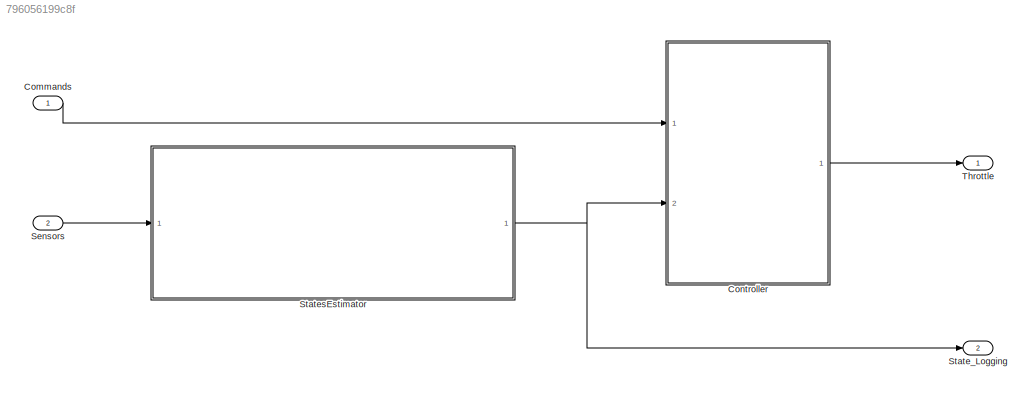
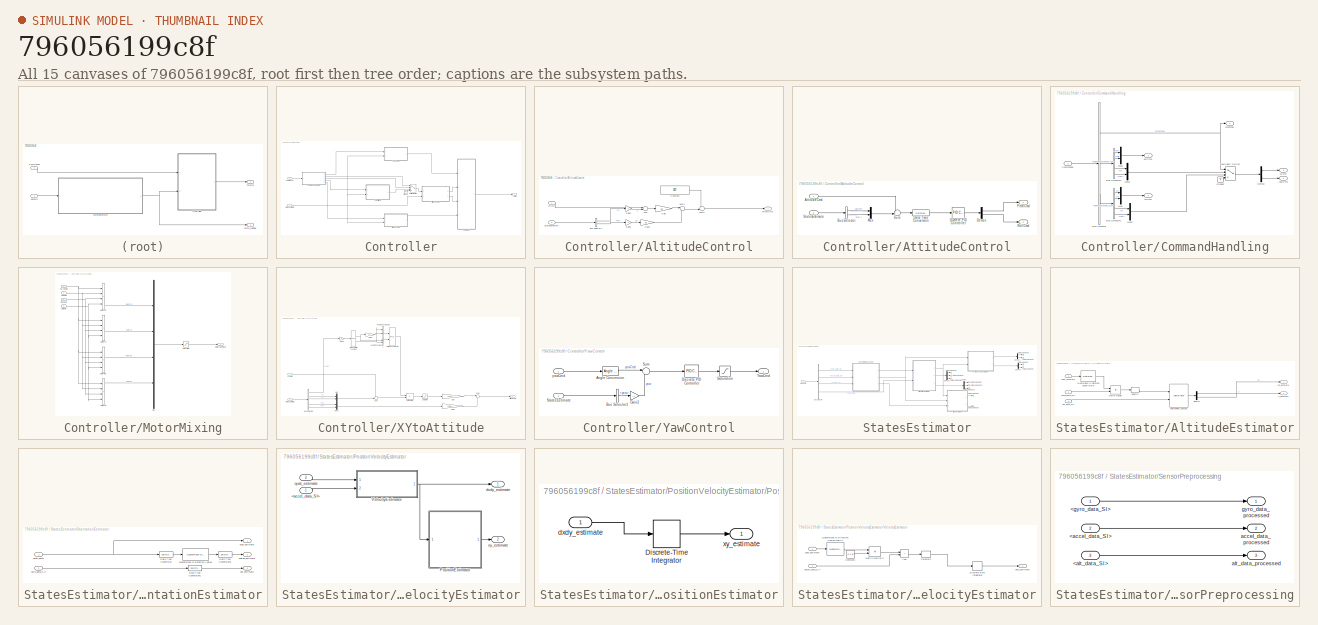
[diagram: thumbnail index - all 15 canvases of the model, root first then tree order]
MODEL slx_796056199c8f
KIND model
CONFIG AbsTol = auto
CONFIG EnableMultiTasking = off
CONFIG FixedStep = auto
CONFIG MaxStep = auto
CONFIG MinStep = auto
CONFIG RelTol = 1e-3
CONFIG SampleTimeConstraint = Unconstrained
CONFIG SolverName = FixedStepAuto
CONFIG StartTime = 0.0
CONFIG StopTime = 10.0
BLOCK [Inport] Commands
  OutDataTypeStr = Bus: command_t
BLOCK [SubSystem] Controller
  Ports = [2, 1]
  RequestExecContextInheritance = off
  TreatAsAtomicUnit = on
BLOCK [SubSystem] Controller/AltitudeControl
  Ports = [2, 1]
  RequestExecContextInheritance = off
BLOCK [BusSelector] Controller/AltitudeControl/Bus Selector1
  OutputSignals = z,dz
  Ports = [1, 2]
BLOCK [Constant] Controller/AltitudeControl/Constant
  Value = 167
BLOCK [Gain] Controller/AltitudeControl/Gain
  Gain = 15
BLOCK [Gain] Controller/AltitudeControl/Gain1
  Gain = 15
BLOCK [Gain] Controller/AltitudeControl/Gain2
  Gain = -1
BLOCK [Gain] Controller/AltitudeControl/Gain3
  Gain = -1
BLOCK [Inport] Controller/AltitudeControl/StatesEstimate
  Port = 2
BLOCK [Sum] Controller/AltitudeControl/Sum
  Inputs = +-|
  Ports = [2, 1]
BLOCK [Sum] Controller/AltitudeControl/Sum1
  Inputs = |+-
  Ports = [2, 1]
BLOCK [Sum] Controller/AltitudeControl/Sum2
  Inputs = ++|
  NameLocation = top
  Ports = [2, 1]
BLOCK [Outport] Controller/AltitudeControl/ThrustCmd
BLOCK [Inport] Controller/AltitudeControl/zCmd
BLOCK [SubSystem] Controller/AttitudeControl
  Ports = [2, 2]
  RequestExecContextInheritance = off
BLOCK [Inport] Controller/AttitudeControl/AttitudeCmd
BLOCK [BusSelector] Controller/AttitudeControl/Bus Selector
  OutputSignals = pitch,roll
  Ports = [1, 2]
BLOCK [DataTypeConversion] Controller/AttitudeControl/Data Type Conversion
  OutDataTypeStr = double
  RndMeth = Floor
  SaturateOnIntegerOverflow = off
BLOCK [Demux] Controller/AttitudeControl/Demux
  Outputs = 2
  Ports = [1, 2]
BLOCK [Reference] Controller/AttitudeControl/Discrete PID Controller  REF=pid_lib/PID Controller
  Ports = [1, 1]
  SourceBlock = pid_lib/PID Controller
  SourceProductBaseCode = SL
  SourceType = PID 1dof
BLOCK [Mux] Controller/AttitudeControl/Mux
  DisplayOption = bar
  Inputs = 2
  Ports = [2, 1]
BLOCK [Outport] Controller/AttitudeControl/PitchCmd
BLOCK [Outport] Controller/AttitudeControl/RollCmd
  Port = 2
BLOCK [Inport] Controller/AttitudeControl/StatesEstimate
  Port = 2
BLOCK [Sum] Controller/AttitudeControl/Sum
  Inputs = +-|
  Ports = [2, 1]
BLOCK [SubSystem] Controller/CommandHandling
  Ports = [1, 5]
  RequestExecContextInheritance = off
BLOCK [BusSelector] Controller/CommandHandling/Bus Selector
  OutputSignals = cmdType,orientReferenceCmd,posReferenceCmd
  Ports = [1, 3]
BLOCK [BusSelector] Controller/CommandHandling/Bus Selector1
  OutputSignals = x,y,z,yaw
  Ports = [1, 4]
BLOCK [BusSelector] Controller/CommandHandling/Bus Selector2
  OutputSignals = pitch,roll,z,yaw
  Ports = [1, 4]
BLOCK [Inport] Controller/CommandHandling/Commands
BLOCK [Demux] Controller/CommandHandling/Demux
  Outputs = 2
  Ports = [1, 2]
BLOCK [Ground] Controller/CommandHandling/Ground
BLOCK [MultiPortSwitch] Controller/CommandHandling/Multiport Switch
  DataPortOrder = Zero-based contiguous
  InputSameDT = off
  Ports = [4, 1]
  SaturateOnIntegerOverflow = off
  zeroidx = on
BLOCK [Mux] Controller/CommandHandling/Mux
  DisplayOption = bar
  Inputs = 2
  Ports = [2, 1]
BLOCK [Mux] Controller/CommandHandling/Mux1
  DisplayOption = bar
  Inputs = 2
  Ports = [2, 1]
BLOCK [Mux] Controller/CommandHandling/Mux2
  DisplayOption = bar
  Inputs = 2
  Ports = [2, 1]
BLOCK [Mux] Controller/CommandHandling/Mux3
  DisplayOption = bar
  Inputs = 2
  Ports = [2, 1]
BLOCK [Outport] Controller/CommandHandling/attCmd
  Port = 3
BLOCK [Outport] Controller/CommandHandling/cmdType
  Port = 2
BLOCK [Outport] Controller/CommandHandling/xyCmd
  Port = 4
BLOCK [Outport] Controller/CommandHandling/yawCmd
BLOCK [Outport] Controller/CommandHandling/zCmd
  Port = 5
BLOCK [Inport] Controller/Commands
BLOCK [Ground] Controller/Ground
BLOCK [SubSystem] Controller/MotorMixing
  Ports = [4, 1]
  RequestExecContextInheritance = off
BLOCK [Sum] Controller/MotorMixing/MotorBL
  IconShape = rectangular
  Inputs = ++-+
  Ports = [4, 1]
BLOCK [Sum] Controller/MotorMixing/MotorBR
  IconShape = rectangular
  Inputs = +---
  Ports = [4, 1]
BLOCK [Outport] Controller/MotorMixing/MotorCommand
BLOCK [Sum] Controller/MotorMixing/MotorFL
  IconShape = rectangular
  Inputs = +-++
  Ports = [4, 1]
BLOCK [Sum] Controller/MotorMixing/MotorFR
  IconShape = rectangular
  Inputs = +++-
  Ports = [4, 1]
BLOCK [Mux] Controller/MotorMixing/Mux
  DisplayOption = bar
  Ports = [4, 1]
BLOCK [Inport] Controller/MotorMixing/PitchCmd
  Port = 2
BLOCK [Inport] Controller/MotorMixing/RollCmd
  Port = 3
BLOCK [Saturate] Controller/MotorMixing/Saturation
  LowerLimit = 0
  UpperLimit = 1000
BLOCK [Inport] Controller/MotorMixing/ThrustCmd
  Port = 4
BLOCK [Inport] Controller/MotorMixing/YawCmd
BLOCK [MultiPortSwitch] Controller/Multiport Switch
  InputSameDT = off
  Ports = [4, 1]
  SaturateOnIntegerOverflow = off
BLOCK [Inport] Controller/StatesEstimate
  OutDataTypeStr = Bus: states_estimate_t
  Port = 2
BLOCK [Outport] Controller/Throttle
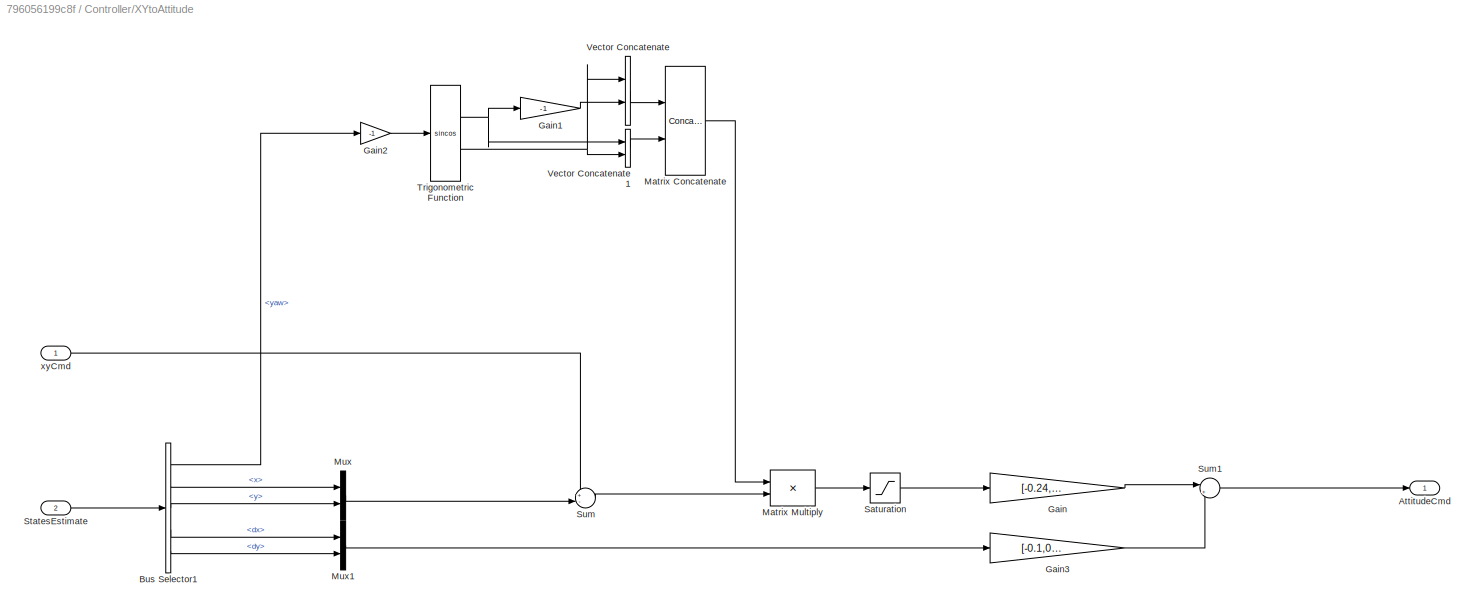
BLOCK [SubSystem] Controller/XYtoAttitude
  Ports = [2, 1]
  RequestExecContextInheritance = off
BLOCK [Outport] Controller/XYtoAttitude/AttitudeCmd
  VectorParamsAs1DForOutWhenUnconnected = off
BLOCK [BusSelector] Controller/XYtoAttitude/Bus Selector1
  OutputSignals = yaw,x,y,dx,dy
  Ports = [1, 5]
BLOCK [Gain] Controller/XYtoAttitude/Gain
  Gain = [-0.24,0.24]
BLOCK [Gain] Controller/XYtoAttitude/Gain1
  Gain = -1
BLOCK [Gain] Controller/XYtoAttitude/Gain2
  Gain = -1
BLOCK [Gain] Controller/XYtoAttitude/Gain3
  Gain = [-0.1,0.1]
BLOCK [Concatenate] Controller/XYtoAttitude/Matrix Concatenate
  ConcatenateDimension = 2
  Mode = Multidimensional array
  Ports = [2, 1]
BLOCK [Product] Controller/XYtoAttitude/Matrix Multiply
  Multiplication = Matrix(*)
  Ports = [2, 1]
BLOCK [Mux] Controller/XYtoAttitude/Mux
  DisplayOption = bar
  Inputs = 2
  Ports = [2, 1]
BLOCK [Mux] Controller/XYtoAttitude/Mux1
  DisplayOption = bar
  Inputs = 2
  Ports = [2, 1]
BLOCK [Saturate] Controller/XYtoAttitude/Saturation
  LowerLimit = -3
  OutDataTypeStr = single
  UpperLimit = 3
BLOCK [Inport] Controller/XYtoAttitude/StatesEstimate
  Port = 2
BLOCK [Sum] Controller/XYtoAttitude/Sum
  Inputs = +-|
  Ports = [2, 1]
BLOCK [Sum] Controller/XYtoAttitude/Sum1
  Inputs = |+-
  Ports = [2, 1]
BLOCK [Trigonometry] Controller/XYtoAttitude/Trigonometric Function
  Operator = sincos
  Ports = [1, 2]
BLOCK [Concatenate] Controller/XYtoAttitude/Vector Concatenate
  Ports = [2, 1]
BLOCK [Concatenate] Controller/XYtoAttitude/Vector Concatenate1
  Ports = [2, 1]
BLOCK [Inport] Controller/XYtoAttitude/xyCmd
BLOCK [SubSystem] Controller/YawControl
  Ports = [2, 1]
  RequestExecContextInheritance = off
BLOCK [Reference] Controller/YawControl/Angle Conversion  REF=aerolibconvert2/Angle Conversion
  Ports = [1, 1]
  SourceBlock = aerolibconvert2/Angle Conversion
  SourceProductBaseCode = AE
  SourceType = Angle Conversion
BLOCK [BusSelector] Controller/YawControl/Bus Selector1
  OutputSignals = yaw
  Ports = [1, 1]
BLOCK [Reference] Controller/YawControl/Discrete PID Controller  REF=pid_lib/PID Controller
  Ports = [1, 1]
  SourceBlock = pid_lib/PID Controller
  SourceProductBaseCode = SL
  SourceType = PID 1dof
BLOCK [Gain] Controller/YawControl/Gain2
  Gain = -1
BLOCK [Saturate] Controller/YawControl/Saturation
  LowerLimit = -150
  UpperLimit = 150
BLOCK [Inport] Controller/YawControl/StatesEstimate
  Port = 2
BLOCK [Sum] Controller/YawControl/Sum
  Inputs = |+-
  Ports = [2, 1]
BLOCK [Outport] Controller/YawControl/YawCmd
BLOCK [Inport] Controller/YawControl/yawCmd
BLOCK [Inport] Sensors
  OutDataTypeStr = Bus: sensor_data_t
  Port = 2
BLOCK [Outport] State_Logging
  OutDataTypeStr = Bus: states_estimate_t
  Port = 2
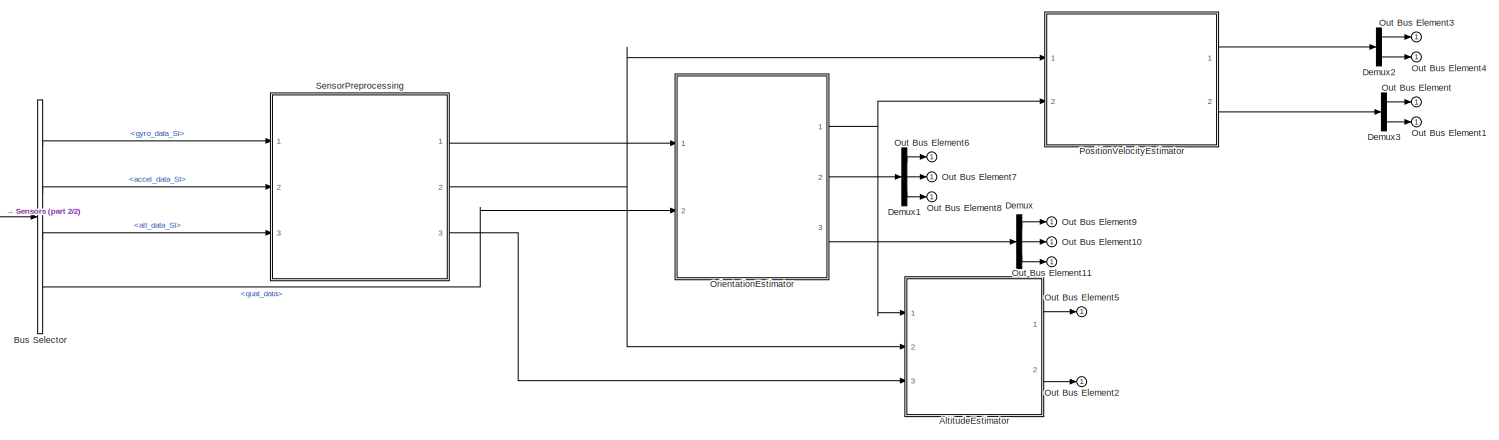
[diagram: StatesEstimator - part 1/2, most of the canvas]
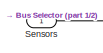
[diagram: StatesEstimator - part 2/2, middle left region]
BLOCK [SubSystem] StatesEstimator
  Ports = [1, 1]
  RequestExecContextInheritance = off
  TreatAsAtomicUnit = on
BLOCK [SubSystem] StatesEstimator/AltitudeEstimator
  Ports = [3, 2]
  RequestExecContextInheritance = off
BLOCK [Inport] StatesEstimator/AltitudeEstimator/<accel_data_SI>
  Port = 2
BLOCK [Inport] StatesEstimator/AltitudeEstimator/<alt_data_SI>
  Port = 3
BLOCK [Inport] StatesEstimator/AltitudeEstimator/DCM_estimate
BLOCK [Demux] StatesEstimator/AltitudeEstimator/Demux
  Outputs = 2
  Ports = [1, 2]
BLOCK [Reference] StatesEstimator/AltitudeEstimator/KalmanFilter_altitude  REF=ctrlSharedLib/Kalman Filter
  Ports = [2, 1]
  SourceBlock = ctrlSharedLib/Kalman Filter
  SourceProductBaseCode = CT,ID
  SourceType = ctrlKalmanFilter
BLOCK [Product] StatesEstimator/AltitudeEstimator/Matrix Multiply
  Multiplication = Matrix(*)
  OutDataTypeStr = single
  Ports = [2, 1]
BLOCK [Reference] StatesEstimator/AltitudeEstimator/Quaternions to Direction Cosine Matrix  REF=sharedtransform/Quaternions to 
Direction Cosine Matrix
  Ports = [1, 1]
  SourceBlock = sharedtransform/Quaternions to \nDirection Cosine Matrix
  SourceProductBaseCode = AE,PW,MT,UV,VE,VP
  SourceType = Quaternion2DCM
BLOCK [Selector] StatesEstimator/AltitudeEstimator/Selector
  IndexOptions = Index vector (dialog)
  Indices = [3]
  InputPortWidth = 3
  OutputSizes = 1
  Ports = [1, 1]
BLOCK [Outport] StatesEstimator/AltitudeEstimator/dz_estimate
BLOCK [Outport] StatesEstimator/AltitudeEstimator/z_estimate
  Port = 2
BLOCK [BusSelector] StatesEstimator/Bus Selector
  OutputSignals = gyro_data_SI,accel_data_SI,alt_data_SI,quat_data
  Ports = [1, 4]
BLOCK [Demux] StatesEstimator/Demux
  Outputs = 3
  Ports = [1, 3]
BLOCK [Demux] StatesEstimator/Demux1
  Outputs = 3
  Ports = [1, 3]
BLOCK [Demux] StatesEstimator/Demux2
  Outputs = 2
  Ports = [1, 2]
BLOCK [Demux] StatesEstimator/Demux3
  Outputs = 2
  Ports = [1, 2]
BLOCK [SubSystem] StatesEstimator/OrientationEstimator
  Ports = [2, 3]
  RequestExecContextInheritance = off
BLOCK [Inport] StatesEstimator/OrientationEstimator/<gyro_data_SI>
BLOCK [Inport] StatesEstimator/OrientationEstimator/<quat_data>
  Port = 2
BLOCK [DataTypeConversion] StatesEstimator/OrientationEstimator/Data Type Conversion
  OutDataTypeStr = double
  RndMeth = Floor
  SaturateOnIntegerOverflow = off
BLOCK [DataTypeConversion] StatesEstimator/OrientationEstimator/Data Type Conversion1
  OutDataTypeStr = single
  RndMeth = Floor
  SaturateOnIntegerOverflow = off
BLOCK [DataTypeConversion] StatesEstimator/OrientationEstimator/Data Type Conversion2
  OutDataTypeStr = single
  RndMeth = Floor
  SaturateOnIntegerOverflow = off
BLOCK [Reference] StatesEstimator/OrientationEstimator/Quaternions to Rotation Angles  REF=sharedtransform/Quaternions to Rotation Angles
  AttributesFormatString = Rotation Order: %<rotationOrder>
  Ports = [1, 1]
  SourceBlock = sharedtransform/Quaternions to Rotation Angles
  SourceProductBaseCode = AE,PW,MT,UV,VE,VP
  SourceType = Quat2Ang
BLOCK [Outport] StatesEstimator/OrientationEstimator/angles_estimate
  Port = 2
BLOCK [Outport] StatesEstimator/OrientationEstimator/pqr_estimate
  Port = 3
BLOCK [Outport] StatesEstimator/OrientationEstimator/quat_estimate
BLOCK [Outport] StatesEstimator/Out Bus Element
BLOCK [Outport] StatesEstimator/Out Bus Element1
BLOCK [Outport] StatesEstimator/Out Bus Element10
BLOCK [Outport] StatesEstimator/Out Bus Element11
BLOCK [Outport] StatesEstimator/Out Bus Element2
BLOCK [Outport] StatesEstimator/Out Bus Element3
BLOCK [Outport] StatesEstimator/Out Bus Element4
BLOCK [Outport] StatesEstimator/Out Bus Element5
BLOCK [Outport] StatesEstimator/Out Bus Element6
BLOCK [Outport] StatesEstimator/Out Bus Element7
BLOCK [Outport] StatesEstimator/Out Bus Element8
BLOCK [Outport] StatesEstimator/Out Bus Element9
BLOCK [SubSystem] StatesEstimator/PositionVelocityEstimator
  Ports = [2, 2]
  RequestExecContextInheritance = off
BLOCK [Inport] StatesEstimator/PositionVelocityEstimator/<accel_data_SI>
BLOCK [SubSystem] StatesEstimator/PositionVelocityEstimator/PositionEstimator
  Ports = [1, 1]
  RequestExecContextInheritance = off
BLOCK [DiscreteIntegrator] StatesEstimator/PositionVelocityEstimator/PositionEstimator/Discrete-Time Integrator
  ICPrevOutput = DiscIntNeverNeededParam
  ICPrevScaledInput = DiscIntNeverNeededParam
  InitialConditionSetting = Auto
  Ports = [1, 1]
  SampleTime = Ts
BLOCK [Inport] StatesEstimator/PositionVelocityEstimator/PositionEstimator/dxdy_estimate
BLOCK [Outport] StatesEstimator/PositionVelocityEstimator/PositionEstimator/xy_estimate
BLOCK [SubSystem] StatesEstimator/PositionVelocityEstimator/VelocityEstimator
  Ports = [2, 1]
  RequestExecContextInheritance = off
BLOCK [Inport] StatesEstimator/PositionVelocityEstimator/VelocityEstimator/<accel_data_SI>
  Port = 2
BLOCK [Sum] StatesEstimator/PositionVelocityEstimator/VelocityEstimator/Add
  IconShape = rectangular
  Ports = [2, 1]
BLOCK [Constant] StatesEstimator/PositionVelocityEstimator/VelocityEstimator/Constant1
  Value = [0 0 g]
BLOCK [DiscreteIntegrator] StatesEstimator/PositionVelocityEstimator/VelocityEstimator/Discrete-Time Integrator
  ICPrevOutput = DiscIntNeverNeededParam
  ICPrevScaledInput = DiscIntNeverNeededParam
  InitialConditionSetting = Auto
  Ports = [1, 1]
  SampleTime = Ts
BLOCK [Product] StatesEstimator/PositionVelocityEstimator/VelocityEstimator/Matrix Multiply1
  Multiplication = Matrix(*)
  OutDataTypeStr = single
  Ports = [2, 1]
BLOCK [Reference] StatesEstimator/PositionVelocityEstimator/VelocityEstimator/Quaternions to Direction Cosine Matrix  REF=sharedtransform/Quaternions to 
Direction Cosine Matrix
  Ports = [1, 1]
  SourceBlock = sharedtransform/Quaternions to \nDirection Cosine Matrix
  SourceProductBaseCode = AE,PW,MT,UV,VE,VP
  SourceType = Quaternion2DCM
BLOCK [Selector] StatesEstimator/PositionVelocityEstimator/VelocityEstimator/Selector1
  IndexOptions = Index vector (dialog)
  Indices = [1 2]
  InputPortWidth = 3
  OutputSizes = 1
  Ports = [1, 1]
BLOCK [Outport] StatesEstimator/PositionVelocityEstimator/VelocityEstimator/dxdy_estimate
BLOCK [Inport] StatesEstimator/PositionVelocityEstimator/VelocityEstimator/quat_estimate
BLOCK [Outport] StatesEstimator/PositionVelocityEstimator/dxdy_estimate
BLOCK [Inport] StatesEstimator/PositionVelocityEstimator/quat_estimate
  Port = 2
BLOCK [Outport] StatesEstimator/PositionVelocityEstimator/xy_estimate
  Port = 2
BLOCK [SubSystem] StatesEstimator/SensorPreprocessing
  Ports = [3, 3]
  RequestExecContextInheritance = off
BLOCK [Inport] StatesEstimator/SensorPreprocessing/<accel_data_SI>
  Port = 2
BLOCK [Inport] StatesEstimator/SensorPreprocessing/<alt_data_SI>
  Port = 3
BLOCK [Inport] StatesEstimator/SensorPreprocessing/<gyro_data_SI>
BLOCK [Outport] StatesEstimator/SensorPreprocessing/accel_data_processed
  Port = 2
BLOCK [Outport] StatesEstimator/SensorPreprocessing/alt_data_processed
  Port = 3
BLOCK [Outport] StatesEstimator/SensorPreprocessing/gyro_data_processed
BLOCK [Inport] StatesEstimator/Sensors
  OutDataTypeStr = Bus: sensor_data_t
BLOCK [Outport] Throttle
LINE Commands:1 -> Controller:1
LINE Controller/AltitudeControl/Bus Selector1:1 -> Controller/AltitudeControl/Gain2:1
LINE Controller/AltitudeControl/Bus Selector1:2 -> Controller/AltitudeControl/Gain3:1
LINE Controller/AltitudeControl/Constant:1 -> Controller/AltitudeControl/Sum2:1
LINE Controller/AltitudeControl/Gain1:1 -> Controller/AltitudeControl/Sum1:2
LINE Controller/AltitudeControl/Gain2:1 -> Controller/AltitudeControl/Sum:2
LINE Controller/AltitudeControl/Gain3:1 -> Controller/AltitudeControl/Gain1:1
LINE Controller/AltitudeControl/Gain:1 -> Controller/AltitudeControl/Sum1:1
LINE Controller/AltitudeControl/StatesEstimate:1 -> Controller/AltitudeControl/Bus Selector1:1
LINE Controller/AltitudeControl/Sum1:1 -> Controller/AltitudeControl/Sum2:2
LINE Controller/AltitudeControl/Sum2:1 -> Controller/AltitudeControl/ThrustCmd:1
LINE Controller/AltitudeControl/Sum:1 -> Controller/AltitudeControl/Gain:1
LINE Controller/AltitudeControl/zCmd:1 -> Controller/AltitudeControl/Sum:1
LINE Controller/AltitudeControl:1 -> Controller/MotorMixing:4
LINE Controller/AttitudeControl/AttitudeCmd:1 -> Controller/AttitudeControl/Sum:1
LINE Controller/AttitudeControl/Bus Selector:1 -> Controller/AttitudeControl/Mux:1
LINE Controller/AttitudeControl/Bus Selector:2 -> Controller/AttitudeControl/Mux:2
LINE Controller/AttitudeControl/Data Type Conversion:1 -> Controller/AttitudeControl/Discrete PID Controller:1
LINE Controller/AttitudeControl/Demux:1 -> Controller/AttitudeControl/PitchCmd:1
LINE Controller/AttitudeControl/Demux:2 -> Controller/AttitudeControl/RollCmd:1
LINE Controller/AttitudeControl/Discrete PID Controller:1 -> Controller/AttitudeControl/Demux:1
LINE Controller/AttitudeControl/Mux:1 -> Controller/AttitudeControl/Sum:2
LINE Controller/AttitudeControl/StatesEstimate:1 -> Controller/AttitudeControl/Bus Selector:1
LINE Controller/AttitudeControl/Sum:1 -> Controller/AttitudeControl/Data Type Conversion:1
LINE Controller/AttitudeControl:1 -> Controller/MotorMixing:2
LINE Controller/AttitudeControl:2 -> Controller/MotorMixing:3
LINE Controller/CommandHandling/Bus Selector1:1 -> Controller/CommandHandling/Mux:1
LINE Controller/CommandHandling/Bus Selector1:2 -> Controller/CommandHandling/Mux:2
LINE Controller/CommandHandling/Bus Selector1:3 -> Controller/CommandHandling/Mux2:1
LINE Controller/CommandHandling/Bus Selector1:4 -> Controller/CommandHandling/Mux2:2
LINE Controller/CommandHandling/Bus Selector2:1 -> Controller/CommandHandling/Mux1:1
LINE Controller/CommandHandling/Bus Selector2:2 -> Controller/CommandHandling/Mux1:2
LINE Controller/CommandHandling/Bus Selector2:3 -> Controller/CommandHandling/Mux3:1
LINE Controller/CommandHandling/Bus Selector2:4 -> Controller/CommandHandling/Mux3:2
NET Controller/CommandHandling/Bus Selector:1 -> Controller/CommandHandling/Multiport Switch:1, Controller/CommandHandling/cmdType:1
LINE Controller/CommandHandling/Bus Selector:2 -> Controller/CommandHandling/Bus Selector2:1
LINE Controller/CommandHandling/Bus Selector:3 -> Controller/CommandHandling/Bus Selector1:1
LINE Controller/CommandHandling/Commands:1 -> Controller/CommandHandling/Bus Selector:1
LINE Controller/CommandHandling/Demux:1 -> Controller/CommandHandling/zCmd:1
LINE Controller/CommandHandling/Demux:2 -> Controller/CommandHandling/yawCmd:1
LINE Controller/CommandHandling/Ground:1 -> Controller/CommandHandling/Multiport Switch:4
LINE Controller/CommandHandling/Multiport Switch:1 -> Controller/CommandHandling/Demux:1
LINE Controller/CommandHandling/Mux1:1 -> Controller/CommandHandling/attCmd:1
LINE Controller/CommandHandling/Mux2:1 -> Controller/CommandHandling/Multiport Switch:3
LINE Controller/CommandHandling/Mux3:1 -> Controller/CommandHandling/Multiport Switch:2
LINE Controller/CommandHandling/Mux:1 -> Controller/CommandHandling/xyCmd:1
LINE Controller/CommandHandling:1 -> Controller/YawControl:1
LINE Controller/CommandHandling:2 -> Controller/Multiport Switch:1
LINE Controller/CommandHandling:3 -> Controller/Multiport Switch:2
LINE Controller/CommandHandling:4 -> Controller/XYtoAttitude:1
LINE Controller/CommandHandling:5 -> Controller/AltitudeControl:1
LINE Controller/Commands:1 -> Controller/CommandHandling:1
LINE Controller/Ground:1 -> Controller/Multiport Switch:4
LINE Controller/MotorMixing/MotorBL:1 -> Controller/MotorMixing/Mux:4
LINE Controller/MotorMixing/MotorBR:1 -> Controller/MotorMixing/Mux:3
LINE Controller/MotorMixing/MotorFL:1 -> Controller/MotorMixing/Mux:2
LINE Controller/MotorMixing/MotorFR:1 -> Controller/MotorMixing/Mux:1
LINE Controller/MotorMixing/Mux:1 -> Controller/MotorMixing/Saturation:1
NET Controller/MotorMixing/PitchCmd:1 -> Controller/MotorMixing/MotorBL:3, Controller/MotorMixing/MotorBR:3, Controller/MotorMixing/MotorFL:3, Controller/MotorMixing/MotorFR:3
NET Controller/MotorMixing/RollCmd:1 -> Controller/MotorMixing/MotorBL:4, Controller/MotorMixing/MotorBR:4, Controller/MotorMixing/MotorFL:4, Controller/MotorMixing/MotorFR:4
LINE Controller/MotorMixing/Saturation:1 -> Controller/MotorMixing/MotorCommand:1
NET Controller/MotorMixing/ThrustCmd:1 -> Controller/MotorMixing/MotorBL:1, Controller/MotorMixing/MotorBR:1, Controller/MotorMixing/MotorFL:1, Controller/MotorMixing/MotorFR:1
NET Controller/MotorMixing/YawCmd:1 -> Controller/MotorMixing/MotorBL:2, Controller/MotorMixing/MotorBR:2, Controller/MotorMixing/MotorFL:2, Controller/MotorMixing/MotorFR:2
LINE Controller/MotorMixing:1 -> Controller/Throttle:1
LINE Controller/Multiport Switch:1 -> Controller/AttitudeControl:1
NET Controller/StatesEstimate:1 -> Controller/AltitudeControl:2, Controller/AttitudeControl:2, Controller/XYtoAttitude:2, Controller/YawControl:2
LINE Controller/XYtoAttitude/Bus Selector1:1 -> Controller/XYtoAttitude/Gain2:1
LINE Controller/XYtoAttitude/Bus Selector1:2 -> Controller/XYtoAttitude/Mux:1
LINE Controller/XYtoAttitude/Bus Selector1:3 -> Controller/XYtoAttitude/Mux:2
LINE Controller/XYtoAttitude/Bus Selector1:4 -> Controller/XYtoAttitude/Mux1:1
LINE Controller/XYtoAttitude/Bus Selector1:5 -> Controller/XYtoAttitude/Mux1:2
LINE Controller/XYtoAttitude/Gain1:1 -> Controller/XYtoAttitude/Vector Concatenate:2
LINE Controller/XYtoAttitude/Gain2:1 -> Controller/XYtoAttitude/Trigonometric Function:1
LINE Controller/XYtoAttitude/Gain3:1 -> Controller/XYtoAttitude/Sum1:2
LINE Controller/XYtoAttitude/Gain:1 -> Controller/XYtoAttitude/Sum1:1
LINE Controller/XYtoAttitude/Matrix Concatenate:1 -> Controller/XYtoAttitude/Matrix Multiply:1
LINE Controller/XYtoAttitude/Matrix Multiply:1 -> Controller/XYtoAttitude/Saturation:1
LINE Controller/XYtoAttitude/Mux1:1 -> Controller/XYtoAttitude/Gain3:1
LINE Controller/XYtoAttitude/Mux:1 -> Controller/XYtoAttitude/Sum:2
LINE Controller/XYtoAttitude/Saturation:1 -> Controller/XYtoAttitude/Gain:1
LINE Controller/XYtoAttitude/StatesEstimate:1 -> Controller/XYtoAttitude/Bus Selector1:1
LINE Controller/XYtoAttitude/Sum1:1 -> Controller/XYtoAttitude/AttitudeCmd:1
LINE Controller/XYtoAttitude/Sum:1 -> Controller/XYtoAttitude/Matrix Multiply:2
NET Controller/XYtoAttitude/Trigonometric Function:1 -> Controller/XYtoAttitude/Gain1:1, Controller/XYtoAttitude/Vector Concatenate1:1
NET Controller/XYtoAttitude/Trigonometric Function:2 -> Controller/XYtoAttitude/Vector Concatenate1:2, Controller/XYtoAttitude/Vector Concatenate:1
LINE Controller/XYtoAttitude/Vector Concatenate1:1 -> Controller/XYtoAttitude/Matrix Concatenate:2
LINE Controller/XYtoAttitude/Vector Concatenate:1 -> Controller/XYtoAttitude/Matrix Concatenate:1
LINE Controller/XYtoAttitude/xyCmd:1 -> Controller/XYtoAttitude/Sum:1
LINE Controller/XYtoAttitude:1 -> Controller/Multiport Switch:3
LINE Controller/YawControl/Angle Conversion:1 -> Controller/YawControl/Sum:1
LINE Controller/YawControl/Bus Selector1:1 -> Controller/YawControl/Gain2:1
LINE Controller/YawControl/Discrete PID Controller:1 -> Controller/YawControl/Saturation:1
LINE Controller/YawControl/Gain2:1 -> Controller/YawControl/Sum:2
LINE Controller/YawControl/Saturation:1 -> Controller/YawControl/YawCmd:1
LINE Controller/YawControl/StatesEstimate:1 -> Controller/YawControl/Bus Selector1:1
LINE Controller/YawControl/Sum:1 -> Controller/YawControl/Discrete PID Controller:1
LINE Controller/YawControl/yawCmd:1 -> Controller/YawControl/Angle Conversion:1
LINE Controller/YawControl:1 -> Controller/MotorMixing:1
LINE Controller:1 -> Throttle:1
LINE Sensors:1 -> StatesEstimator:1
LINE StatesEstimator/AltitudeEstimator/<accel_data_SI>:1 -> StatesEstimator/AltitudeEstimator/Matrix Multiply:2
LINE StatesEstimator/AltitudeEstimator/<alt_data_SI>:1 -> StatesEstimator/AltitudeEstimator/KalmanFilter_altitude:2
LINE StatesEstimator/AltitudeEstimator/DCM_estimate:1 -> StatesEstimator/AltitudeEstimator/Quaternions to Direction Cosine Matrix:1
LINE StatesEstimator/AltitudeEstimator/Demux:1 -> StatesEstimator/AltitudeEstimator/z_estimate:1
LINE StatesEstimator/AltitudeEstimator/Demux:2 -> StatesEstimator/AltitudeEstimator/dz_estimate:1
LINE StatesEstimator/AltitudeEstimator/KalmanFilter_altitude:1 -> StatesEstimator/AltitudeEstimator/Demux:1
LINE StatesEstimator/AltitudeEstimator/Matrix Multiply:1 -> StatesEstimator/AltitudeEstimator/Selector:1
LINE StatesEstimator/AltitudeEstimator/Quaternions to Direction Cosine Matrix:1 -> StatesEstimator/AltitudeEstimator/Matrix Multiply:1
LINE StatesEstimator/AltitudeEstimator/Selector:1 -> StatesEstimator/AltitudeEstimator/KalmanFilter_altitude:1
LINE StatesEstimator/AltitudeEstimator:1 -> StatesEstimator/Out Bus Element5:1
LINE StatesEstimator/AltitudeEstimator:2 -> StatesEstimator/Out Bus Element2:1
LINE StatesEstimator/Bus Selector:1 -> StatesEstimator/SensorPreprocessing:1
LINE StatesEstimator/Bus Selector:2 -> StatesEstimator/SensorPreprocessing:2
LINE StatesEstimator/Bus Selector:3 -> StatesEstimator/SensorPreprocessing:3
LINE StatesEstimator/Bus Selector:4 -> StatesEstimator/OrientationEstimator:2
LINE StatesEstimator/Demux1:1 -> StatesEstimator/Out Bus Element6:1
LINE StatesEstimator/Demux1:2 -> StatesEstimator/Out Bus Element7:1
LINE StatesEstimator/Demux1:3 -> StatesEstimator/Out Bus Element8:1
LINE StatesEstimator/Demux2:1 -> StatesEstimator/Out Bus Element3:1
LINE StatesEstimator/Demux2:2 -> StatesEstimator/Out Bus Element4:1
LINE StatesEstimator/Demux3:1 -> StatesEstimator/Out Bus Element:1
LINE StatesEstimator/Demux3:2 -> StatesEstimator/Out Bus Element1:1
LINE StatesEstimator/Demux:1 -> StatesEstimator/Out Bus Element9:1
LINE StatesEstimator/Demux:2 -> StatesEstimator/Out Bus Element10:1
LINE StatesEstimator/Demux:3 -> StatesEstimator/Out Bus Element11:1
LINE StatesEstimator/OrientationEstimator/<gyro_data_SI>:1 -> StatesEstimator/OrientationEstimator/Data Type Conversion1:1
NET StatesEstimator/OrientationEstimator/<quat_data>:1 -> StatesEstimator/OrientationEstimator/Data Type Conversion:1, StatesEstimator/OrientationEstimator/quat_estimate:1
LINE StatesEstimator/OrientationEstimator/Data Type Conversion1:1 -> StatesEstimator/OrientationEstimator/pqr_estimate:1
LINE StatesEstimator/OrientationEstimator/Data Type Conversion2:1 -> StatesEstimator/OrientationEstimator/angles_estimate:1
LINE StatesEstimator/OrientationEstimator/Data Type Conversion:1 -> StatesEstimator/OrientationEstimator/Quaternions to Rotation Angles:1
LINE StatesEstimator/OrientationEstimator/Quaternions to Rotation Angles:1 -> StatesEstimator/OrientationEstimator/Data Type Conversion2:1
NET StatesEstimator/OrientationEstimator:1 -> StatesEstimator/AltitudeEstimator:1, StatesEstimator/PositionVelocityEstimator:2
LINE StatesEstimator/OrientationEstimator:2 -> StatesEstimator/Demux1:1
LINE StatesEstimator/OrientationEstimator:3 -> StatesEstimator/Demux:1
LINE StatesEstimator/PositionVelocityEstimator/<accel_data_SI>:1 -> StatesEstimator/PositionVelocityEstimator/VelocityEstimator:2
LINE StatesEstimator/PositionVelocityEstimator/PositionEstimator/Discrete-Time Integrator:1 -> StatesEstimator/PositionVelocityEstimator/PositionEstimator/xy_estimate:1
LINE StatesEstimator/PositionVelocityEstimator/PositionEstimator/dxdy_estimate:1 -> StatesEstimator/PositionVelocityEstimator/PositionEstimator/Discrete-Time Integrator:1
LINE StatesEstimator/PositionVelocityEstimator/PositionEstimator:1 -> StatesEstimator/PositionVelocityEstimator/xy_estimate:1
LINE StatesEstimator/PositionVelocityEstimator/VelocityEstimator/<accel_data_SI>:1 -> StatesEstimator/PositionVelocityEstimator/VelocityEstimator/Add:2
LINE StatesEstimator/PositionVelocityEstimator/VelocityEstimator/Add:1 -> StatesEstimator/PositionVelocityEstimator/VelocityEstimator/Selector1:1
LINE StatesEstimator/PositionVelocityEstimator/VelocityEstimator/Constant1:1 -> StatesEstimator/PositionVelocityEstimator/VelocityEstimator/Matrix Multiply1:2
LINE StatesEstimator/PositionVelocityEstimator/VelocityEstimator/Discrete-Time Integrator:1 -> StatesEstimator/PositionVelocityEstimator/VelocityEstimator/dxdy_estimate:1
LINE StatesEstimator/PositionVelocityEstimator/VelocityEstimator/Matrix Multiply1:1 -> StatesEstimator/PositionVelocityEstimator/VelocityEstimator/Add:1
LINE StatesEstimator/PositionVelocityEstimator/VelocityEstimator/Quaternions to Direction Cosine Matrix:1 -> StatesEstimator/PositionVelocityEstimator/VelocityEstimator/Matrix Multiply1:1
LINE StatesEstimator/PositionVelocityEstimator/VelocityEstimator/Selector1:1 -> StatesEstimator/PositionVelocityEstimator/VelocityEstimator/Discrete-Time Integrator:1
LINE StatesEstimator/PositionVelocityEstimator/VelocityEstimator/quat_estimate:1 -> StatesEstimator/PositionVelocityEstimator/VelocityEstimator/Quaternions to Direction Cosine Matrix:1
NET StatesEstimator/PositionVelocityEstimator/VelocityEstimator:1 -> StatesEstimator/PositionVelocityEstimator/PositionEstimator:1, StatesEstimator/PositionVelocityEstimator/dxdy_estimate:1
LINE StatesEstimator/PositionVelocityEstimator/quat_estimate:1 -> StatesEstimator/PositionVelocityEstimator/VelocityEstimator:1
LINE StatesEstimator/PositionVelocityEstimator:1 -> StatesEstimator/Demux2:1
LINE StatesEstimator/PositionVelocityEstimator:2 -> StatesEstimator/Demux3:1
LINE StatesEstimator/SensorPreprocessing/<accel_data_SI>:1 -> StatesEstimator/SensorPreprocessing/accel_data_processed:1
LINE StatesEstimator/SensorPreprocessing/<alt_data_SI>:1 -> StatesEstimator/SensorPreprocessing/alt_data_processed:1
LINE StatesEstimator/SensorPreprocessing/<gyro_data_SI>:1 -> StatesEstimator/SensorPreprocessing/gyro_data_processed:1
LINE StatesEstimator/SensorPreprocessing:1 -> StatesEstimator/OrientationEstimator:1
NET StatesEstimator/SensorPreprocessing:2 -> StatesEstimator/AltitudeEstimator:2, StatesEstimator/PositionVelocityEstimator:1
LINE StatesEstimator/SensorPreprocessing:3 -> StatesEstimator/AltitudeEstimator:3
LINE StatesEstimator/Sensors:1 -> StatesEstimator/Bus Selector:1
NET StatesEstimator:1 -> Controller:2, State_Logging:1
note: NET lines group one-source signal fan-out (src -> all destinations, sorted); 1:1 wires keep LINE
